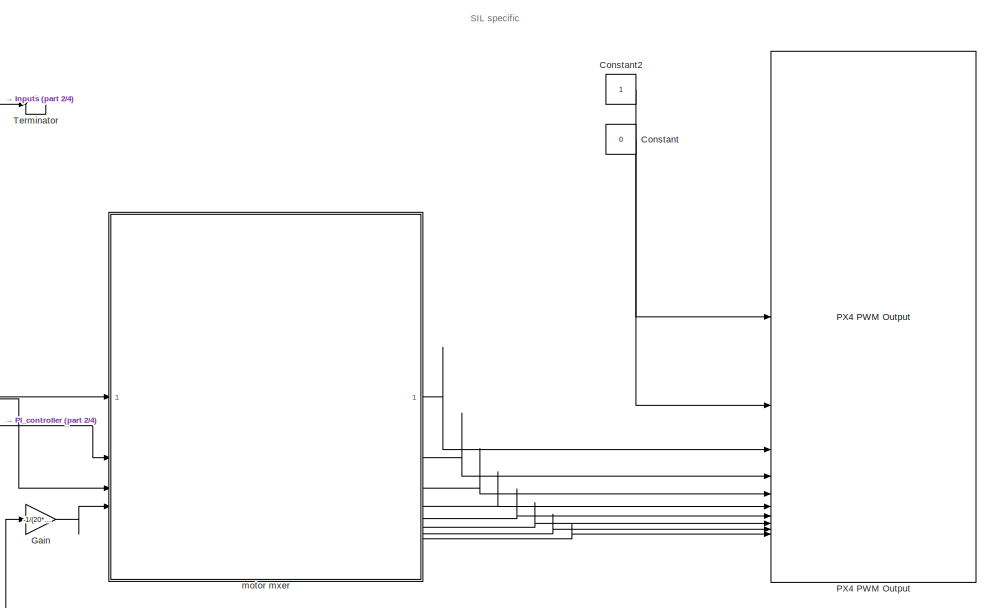
[diagram: root canvas - part 1/4, top right region]
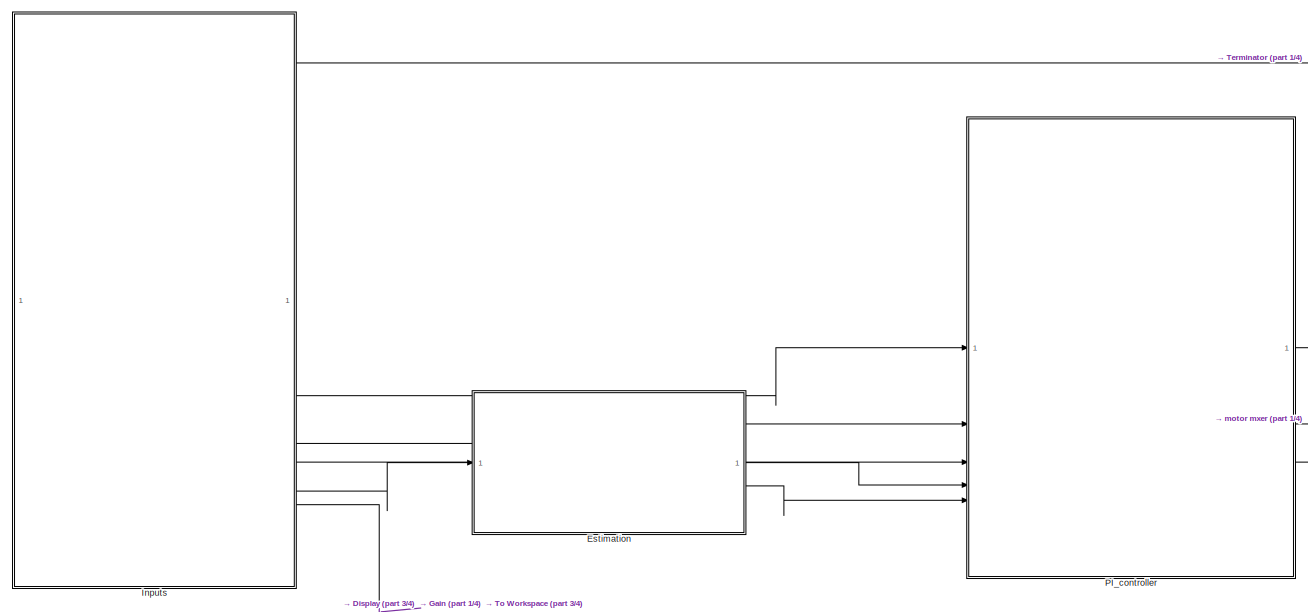
[diagram: root canvas - part 2/4, top left region]
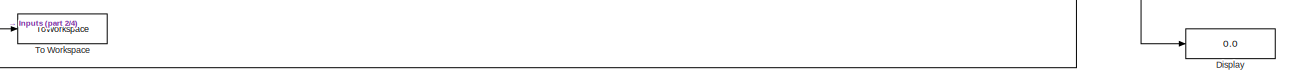
[diagram: root canvas - part 3/4, central region]
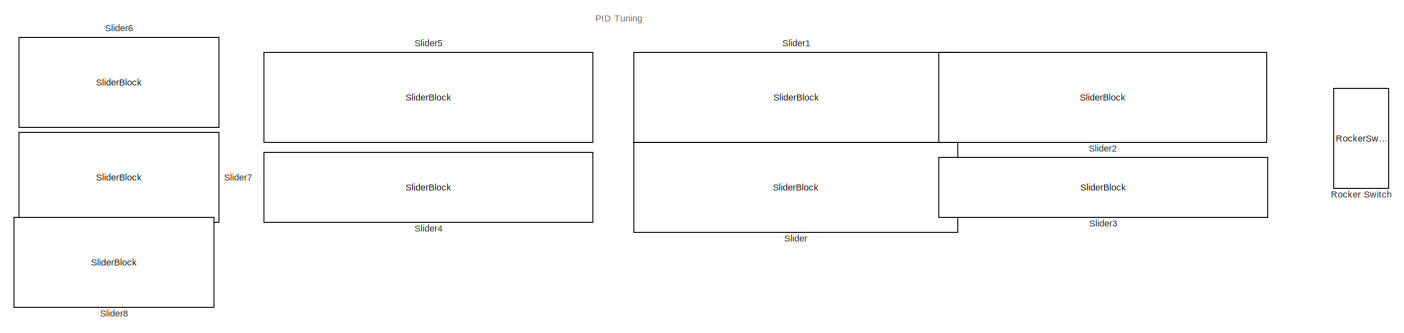
[diagram: root canvas - part 4/4, bottom left region]
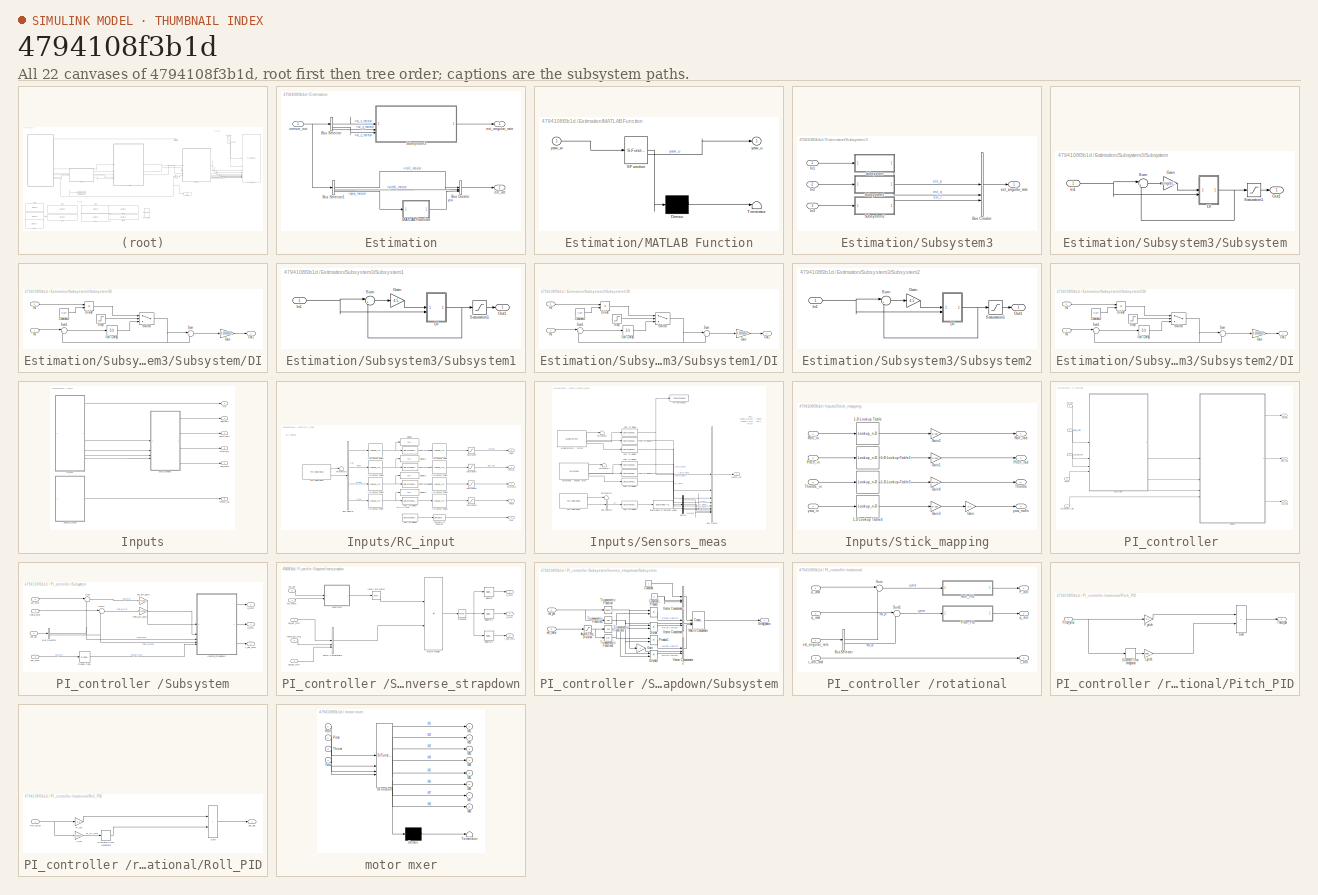
[diagram: thumbnail index - all 22 canvases of the model, root first then tree order]
MODEL slx_4794108f3b1d
KIND model
CONFIG AbsTol = auto
CONFIG EnableMultiTasking = on
CONFIG FixedStep = auto
CONFIG MaxStep = auto
CONFIG MinStep = auto
CONFIG RelTol = 1e-3
CONFIG SampleTimeConstraint = Unconstrained
CONFIG SolverName = FixedStepAuto
CONFIG StartTime = 0.0
CONFIG StopTime = inf
BLOCK [Constant] Constant
  OutDataTypeStr = boolean
  Value = 0
BLOCK [Constant] Constant2
  OutDataTypeStr = boolean
BLOCK [Display] Display
  Decimation = 1
BLOCK [SubSystem] Estimation
BLOCK [BusCreator] Estimation/Bus Creator
  DisplayOption = bar
  InheritFromInputs = on
  Inputs = 3
BLOCK [BusSelector] Estimation/Bus Selector
  OutputSignals = w_x_meas,w_y_meas,w_z_meas
BLOCK [BusSelector] Estimation/Bus Selector1
  OutputSignals = roll_meas,pitch_meas,yaw_meas
BLOCK [SubSystem] Estimation/MATLAB Function
  ErrorFcn = Stateflow.Translate.translate
  PermitHierarchicalResolution = ExplicitOnly
  SFBlockType = MATLAB Function
  TreatAsAtomicUnit = on
BLOCK [Demux] Estimation/MATLAB Function/ Demux 
  Outputs = 1
BLOCK [S-Function] Estimation/MATLAB Function/ SFunction 
  EnableBusSupport = off
  FunctionName = sf_sfun
  PortCounts = [1 2]
  SFcnIsStateOwnerBlock = off
  SFunctionDeploymentMode = off
  Tag = Stateflow S-Function 2
BLOCK [Terminator] Estimation/MATLAB Function/ Terminator 
BLOCK [Outport] Estimation/MATLAB Function/yaw_u
BLOCK [Inport] Estimation/MATLAB Function/yaw_w
BLOCK [SubSystem] Estimation/Subsystem3
BLOCK [BusCreator] Estimation/Subsystem3/Bus Creator
  DisplayOption = bar
  InheritFromInputs = on
  Inputs = 3
BLOCK [Inport] Estimation/Subsystem3/In1
BLOCK [Inport] Estimation/Subsystem3/In2
  Port = 2
BLOCK [Inport] Estimation/Subsystem3/In3
  Port = 3
BLOCK [SubSystem] Estimation/Subsystem3/Subsystem
BLOCK [SubSystem] Estimation/Subsystem3/Subsystem/DI
BLOCK [Constant] Estimation/Subsystem3/Subsystem/DI/Constant2
  Value = 0.004
BLOCK [Product] Estimation/Subsystem3/Subsystem/DI/Divide
  Inputs = */
BLOCK [Gain] Estimation/Subsystem3/Subsystem/DI/Gain
  Gain = 0.004/2
BLOCK [Inport] Estimation/Subsystem3/Subsystem/DI/In1
BLOCK [Inport] Estimation/Subsystem3/Subsystem/DI/In2
  Port = 2
BLOCK [Outport] Estimation/Subsystem3/Subsystem/DI/Out1
BLOCK [Step] Estimation/Subsystem3/Subsystem/DI/Step
  After = 0
  Before = 1
  SampleTime = 0.004
  Time = 0.02
BLOCK [Sum] Estimation/Subsystem3/Subsystem/DI/Sum
  Inputs = |++
  NameLocation = top
BLOCK [Sum] Estimation/Subsystem3/Subsystem/DI/Sum1
  Inputs = |++
BLOCK [Switch] Estimation/Subsystem3/Subsystem/DI/Switch
  Criteria = u2 > Threshold
  InputSameDT = off
  SaturateOnIntegerOverflow = off
BLOCK [UnitDelay] Estimation/Subsystem3/Subsystem/DI/Unit Delay
  HasFrameUpgradeWarning = on
  SampleTime = -1
BLOCK [Gain] Estimation/Subsystem3/Subsystem/Gain
  Gain = single(4.5)
BLOCK [Inport] Estimation/Subsystem3/Subsystem/In1
BLOCK [Outport] Estimation/Subsystem3/Subsystem/Out1
BLOCK [Saturate] Estimation/Subsystem3/Subsystem/Saturation1
  LowerLimit = -5.24
  UpperLimit = 5.24
BLOCK [Sum] Estimation/Subsystem3/Subsystem/Sum
  Inputs = |+-
BLOCK [SubSystem] Estimation/Subsystem3/Subsystem1
BLOCK [SubSystem] Estimation/Subsystem3/Subsystem1/DI
BLOCK [Constant] Estimation/Subsystem3/Subsystem1/DI/Constant2
  Value = 0.004
BLOCK [Product] Estimation/Subsystem3/Subsystem1/DI/Divide
  Inputs = */
BLOCK [Gain] Estimation/Subsystem3/Subsystem1/DI/Gain
  Gain = 0.004/2
BLOCK [Inport] Estimation/Subsystem3/Subsystem1/DI/In1
BLOCK [Inport] Estimation/Subsystem3/Subsystem1/DI/In2
  Port = 2
BLOCK [Outport] Estimation/Subsystem3/Subsystem1/DI/Out1
BLOCK [Step] Estimation/Subsystem3/Subsystem1/DI/Step
  After = 0
  Before = 1
  SampleTime = 0.004
  Time = 0.02
BLOCK [Sum] Estimation/Subsystem3/Subsystem1/DI/Sum
  Inputs = |++
  NameLocation = top
BLOCK [Sum] Estimation/Subsystem3/Subsystem1/DI/Sum1
  Inputs = |++
BLOCK [Switch] Estimation/Subsystem3/Subsystem1/DI/Switch
  Criteria = u2 > Threshold
  InputSameDT = off
  SaturateOnIntegerOverflow = off
BLOCK [UnitDelay] Estimation/Subsystem3/Subsystem1/DI/Unit Delay
  HasFrameUpgradeWarning = on
  SampleTime = -1
BLOCK [Gain] Estimation/Subsystem3/Subsystem1/Gain
  Gain = 4.5
BLOCK [Inport] Estimation/Subsystem3/Subsystem1/In1
BLOCK [Outport] Estimation/Subsystem3/Subsystem1/Out1
BLOCK [Saturate] Estimation/Subsystem3/Subsystem1/Saturation1
  LowerLimit = -5.24
  UpperLimit = 5.24
BLOCK [Sum] Estimation/Subsystem3/Subsystem1/Sum
  Inputs = |+-
BLOCK [SubSystem] Estimation/Subsystem3/Subsystem2
BLOCK [SubSystem] Estimation/Subsystem3/Subsystem2/DI
BLOCK [Constant] Estimation/Subsystem3/Subsystem2/DI/Constant2
  Value = 0.004
BLOCK [Product] Estimation/Subsystem3/Subsystem2/DI/Divide
  Inputs = */
BLOCK [Gain] Estimation/Subsystem3/Subsystem2/DI/Gain
  Gain = 0.004/2
BLOCK [Inport] Estimation/Subsystem3/Subsystem2/DI/In1
BLOCK [Inport] Estimation/Subsystem3/Subsystem2/DI/In2
  Port = 2
BLOCK [Outport] Estimation/Subsystem3/Subsystem2/DI/Out1
BLOCK [Step] Estimation/Subsystem3/Subsystem2/DI/Step
  After = 0
  Before = 1
  SampleTime = 0.004
  Time = 0.02
BLOCK [Sum] Estimation/Subsystem3/Subsystem2/DI/Sum
  Inputs = |++
  NameLocation = top
BLOCK [Sum] Estimation/Subsystem3/Subsystem2/DI/Sum1
  Inputs = |++
BLOCK [Switch] Estimation/Subsystem3/Subsystem2/DI/Switch
  Criteria = u2 > Threshold
  InputSameDT = off
  SaturateOnIntegerOverflow = off
BLOCK [UnitDelay] Estimation/Subsystem3/Subsystem2/DI/Unit Delay
  HasFrameUpgradeWarning = on
  SampleTime = -1
BLOCK [Gain] Estimation/Subsystem3/Subsystem2/Gain
  Gain = 4.5
BLOCK [Inport] Estimation/Subsystem3/Subsystem2/In1
BLOCK [Outport] Estimation/Subsystem3/Subsystem2/Out1
  NameLocation = right
BLOCK [Saturate] Estimation/Subsystem3/Subsystem2/Saturation1
  LowerLimit = -5.24
  UpperLimit = 5.24
BLOCK [Sum] Estimation/Subsystem3/Subsystem2/Sum
  Inputs = |+-
BLOCK [Outport] Estimation/Subsystem3/est_angular_rate
BLOCK [Outport] Estimation/est_angular_rate
BLOCK [Outport] Estimation/est_att
  Port = 2
BLOCK [Inport] Estimation/sensor_out
BLOCK [Gain] Gain
  Gain = -1/(20*9.81*2)
BLOCK [SubSystem] Inputs
BLOCK [Outport] Inputs/Arm
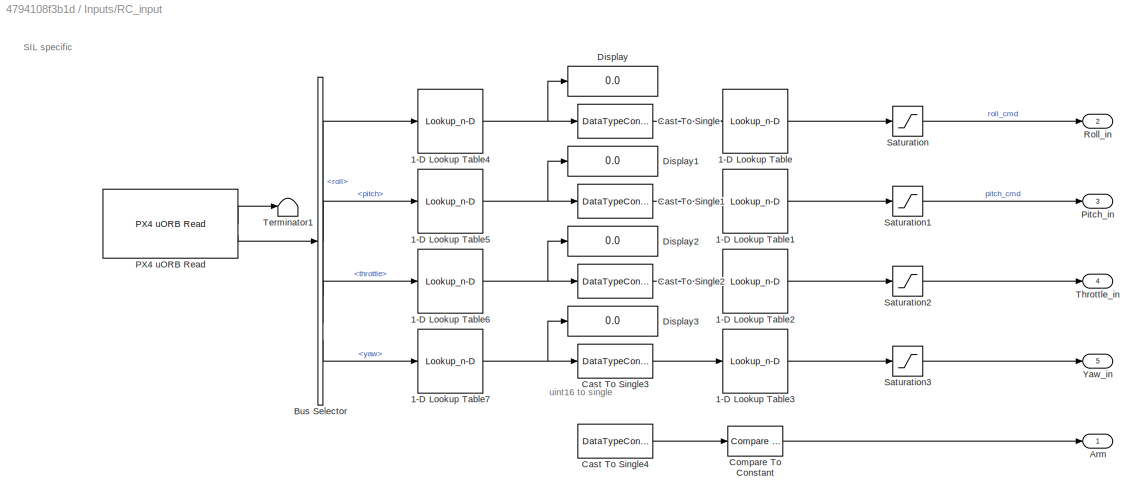
BLOCK [SubSystem] Inputs/RC_input
BLOCK [Lookup_n-D] Inputs/RC_input/1-D Lookup Table
  BreakpointsForDimension1 = ([1000 1500 2000])
  InputPortMap = u0
  InternalRulePriority = Speed
  NumberOfTableDimensions = 1
  RndMeth = Simplest
  Table = single([-1 0 1])
BLOCK [Lookup_n-D] Inputs/RC_input/1-D Lookup Table1
  BreakpointsForDimension1 = ([1000 1500 2000])
  InputPortMap = u0
  InternalRulePriority = Speed
  NumberOfTableDimensions = 1
  RndMeth = Simplest
  Table = single([-1 0 1])
BLOCK [Lookup_n-D] Inputs/RC_input/1-D Lookup Table2
  BreakpointsForDimension1 = ([1000 1500 2000])
  InputPortMap = u0
  InternalRulePriority = Speed
  NumberOfTableDimensions = 1
  RndMeth = Simplest
  Table = single([0 0.5 1])
BLOCK [Lookup_n-D] Inputs/RC_input/1-D Lookup Table3
  BreakpointsForDimension1 = ([1000 1500 2000])
  InputPortMap = u0
  InternalRulePriority = Speed
  NumberOfTableDimensions = 1
  RndMeth = Simplest
  Table = single([-1 0 1])
BLOCK [Lookup_n-D] Inputs/RC_input/1-D Lookup Table4
  BreakpointsForDimension1 = [-1, 0,1]
  InputPortMap = u0
  InternalRulePriority = Speed
  NumberOfTableDimensions = 1
  RndMeth = Simplest
  Table = single([1000, 1500, 2000])
BLOCK [Lookup_n-D] Inputs/RC_input/1-D Lookup Table5
  BreakpointsForDimension1 = [-1, 0,1]
  InputPortMap = u0
  InternalRulePriority = Speed
  NumberOfTableDimensions = 1
  RndMeth = Simplest
  Table = single([1000, 1500, 2000])
BLOCK [Lookup_n-D] Inputs/RC_input/1-D Lookup Table6
  BreakpointsForDimension1 = [0,1]
  InputPortMap = u0
  InternalRulePriority = Speed
  NumberOfTableDimensions = 1
  RndMeth = Simplest
  Table = single([1000,  2000])
BLOCK [Lookup_n-D] Inputs/RC_input/1-D Lookup Table7
  BreakpointsForDimension1 = [-1, 0,1]
  InputPortMap = u0
  InternalRulePriority = Speed
  NumberOfTableDimensions = 1
  RndMeth = Simplest
  Table = single([1000, 1500, 2000])
BLOCK [Outport] Inputs/RC_input/Arm
BLOCK [BusSelector] Inputs/RC_input/Bus Selector
  OutputSignals = roll,pitch,throttle,yaw
BLOCK [DataTypeConversion] Inputs/RC_input/Cast To Single
  OutDataTypeStr = single
  RndMeth = Floor
  SaturateOnIntegerOverflow = off
BLOCK [DataTypeConversion] Inputs/RC_input/Cast To Single1
  OutDataTypeStr = single
  RndMeth = Floor
  SaturateOnIntegerOverflow = off
BLOCK [DataTypeConversion] Inputs/RC_input/Cast To Single2
  OutDataTypeStr = single
  RndMeth = Floor
  SaturateOnIntegerOverflow = off
BLOCK [DataTypeConversion] Inputs/RC_input/Cast To Single3
  OutDataTypeStr = single
  RndMeth = Floor
  SaturateOnIntegerOverflow = off
BLOCK [DataTypeConversion] Inputs/RC_input/Cast To Single4
  Commented = on
  OutDataTypeStr = single
  RndMeth = Floor
  SaturateOnIntegerOverflow = off
BLOCK [Reference] Inputs/RC_input/Compare To Constant  REF=simulink/Logic and Bit
Operations/Compare
To Constant
  Commented = on
  SourceBlock = simulink/Logic and Bit\nOperations/Compare\nTo Constant
  SourceType = Compare To Constant
BLOCK [Display] Inputs/RC_input/Display
  Decimation = 1
BLOCK [Display] Inputs/RC_input/Display1
  Decimation = 1
BLOCK [Display] Inputs/RC_input/Display2
  Decimation = 1
BLOCK [Display] Inputs/RC_input/Display3
  Decimation = 1
BLOCK [Reference] Inputs/RC_input/PX4 uORB Read  REF=px4uORBlib/PX4 uORB Read
  SourceBlock = px4uORBlib/PX4 uORB Read
  SourceType = PX4 uORB Read
BLOCK [Outport] Inputs/RC_input/Pitch_in
  Port = 3
BLOCK [Outport] Inputs/RC_input/Roll_in
  Port = 2
BLOCK [Saturate] Inputs/RC_input/Saturation
  LowerLimit = -1
  UpperLimit = 1
BLOCK [Saturate] Inputs/RC_input/Saturation1
  LowerLimit = -1
  UpperLimit = 1
BLOCK [Saturate] Inputs/RC_input/Saturation2
  LowerLimit = 0
  UpperLimit = 1
BLOCK [Saturate] Inputs/RC_input/Saturation3
  LowerLimit = -1
  UpperLimit = 1
BLOCK [Terminator] Inputs/RC_input/Terminator1
BLOCK [Outport] Inputs/RC_input/Throttle_in
  Port = 4
BLOCK [Outport] Inputs/RC_input/Yaw_in
  Port = 5
BLOCK [Outport] Inputs/Roll_rad//s
  Port = 2
BLOCK [SubSystem] Inputs/Sensors_meas
BLOCK [Reference] Inputs/Sensors_meas/Accelerometer - forces   REF=px4Sensorslib/Accelerometer
  SourceBlock = px4Sensorslib/Accelerometer
  SourceType = PX4 Accelerometer
BLOCK [BusCreator] Inputs/Sensors_meas/Bus Creator
  DisplayOption = bar
  InheritFromInputs = on
  Inputs = 9
BLOCK [BusSelector] Inputs/Sensors_meas/Bus Selector
  OutputSignals = q
BLOCK [DataTypeConversion] Inputs/Sensors_meas/Cast To Single
  OutDataTypeStr = single
  RndMeth = Floor
  SaturateOnIntegerOverflow = off
BLOCK [DataTypeConversion] Inputs/Sensors_meas/Cast To Single1
  OutDataTypeStr = single
  RndMeth = Floor
  SaturateOnIntegerOverflow = off
BLOCK [DataTypeConversion] Inputs/Sensors_meas/Cast To Single2
  OutDataTypeStr = single
  RndMeth = Floor
  SaturateOnIntegerOverflow = off
BLOCK [DataTypeConversion] Inputs/Sensors_meas/Cast To Single3
  OutDataTypeStr = single
  RndMeth = Floor
  SaturateOnIntegerOverflow = off
BLOCK [DataTypeConversion] Inputs/Sensors_meas/Cast To Single4
  OutDataTypeStr = single
  RndMeth = Floor
  SaturateOnIntegerOverflow = off
BLOCK [DataTypeConversion] Inputs/Sensors_meas/Cast To Single5
  OutDataTypeStr = single
  RndMeth = Floor
  SaturateOnIntegerOverflow = off
BLOCK [DataTypeConversion] Inputs/Sensors_meas/Cast To Single6
  OutDataTypeStr = single
  RndMeth = Floor
  SaturateOnIntegerOverflow = off
BLOCK [Demux] Inputs/Sensors_meas/Demux
  Outputs = 3
BLOCK [Reference] Inputs/Sensors_meas/Gyroscope - angular rates  REF=px4Sensorslib/Gyroscope
  SourceBlock = px4Sensorslib/Gyroscope
  SourceType = PX4 Gyroscope
BLOCK [Reference] Inputs/Sensors_meas/PX4 uORB Read  REF=px4uORBlib/PX4 uORB Read
  SourceBlock = px4uORBlib/PX4 uORB Read
  SourceType = PX4 uORB Read
BLOCK [Reference] Inputs/Sensors_meas/Quaternions to Rotation Angles  REF=sharedtransform/Quaternions to Rotation Angles
  AttributesFormatString = Rotation Order: %<rotationOrder>
  LibrarySourceBlock = aerolibtransform2/Quaternions to Rotation Angles
  SourceBlock = sharedtransform/Quaternions to Rotation Angles
  SourceType = Quat2Ang
BLOCK [Terminator] Inputs/Sensors_meas/Terminator
BLOCK [Terminator] Inputs/Sensors_meas/Terminator1
BLOCK [Terminator] Inputs/Sensors_meas/Terminator2
BLOCK [ToWorkspace] Inputs/Sensors_meas/To Workspace
  FixptAsFi = on
  MaxDataPoints = inf
  SampleTime = -1
  SaveFormat = Structure With Time
  VariableName = ax
BLOCK [Outport] Inputs/Sensors_meas/sensor_out
BLOCK [SubSystem] Inputs/Stick_mapping
BLOCK [Lookup_n-D] Inputs/Stick_mapping/1-D Lookup Table
  BreakpointsForDimension1 = single([-1,1])
  InputPortMap = u0
  InternalRulePriority = Speed
  NumberOfTableDimensions = 1
  RndMeth = Simplest
  Table = single([-30,30])
BLOCK [Lookup_n-D] Inputs/Stick_mapping/1-D Lookup Table1
  BreakpointsForDimension1 = single([-1,1])
  InputPortMap = u0
  InternalRulePriority = Speed
  NumberOfTableDimensions = 1
  RndMeth = Simplest
  Table = single([30,-30])
BLOCK [Lookup_n-D] Inputs/Stick_mapping/1-D Lookup Table3
  BreakpointsForDimension1 = single([0 0.100000001 0.25 0.5 0.75 1])
  InputPortMap = u0
  InternalRulePriority = Speed
  NumberOfTableDimensions = 1
  RndMeth = Simplest
  Table = single([0 -0.200000003 -0.5 -1 -1.5 -2])
BLOCK [Lookup_n-D] Inputs/Stick_mapping/1-D Lookup Table4
  BreakpointsForDimension1 = single([-1,1])
  InputPortMap = u0
  InternalRulePriority = Speed
  NumberOfTableDimensions = 1
  RndMeth = Simplest
  Table = single([-90,90])
BLOCK [Gain] Inputs/Stick_mapping/Gain
  Gain = 0.2
BLOCK [Gain] Inputs/Stick_mapping/Gain1
  Gain = pi/180
BLOCK [Gain] Inputs/Stick_mapping/Gain2
  Gain = pi/180
BLOCK [Gain] Inputs/Stick_mapping/Gain3
  Gain = pi/180
BLOCK [Gain] Inputs/Stick_mapping/Gain4
  Gain = 20*9.81
BLOCK [Inport] Inputs/Stick_mapping/Pitch_in
  Port = 2
BLOCK [Outport] Inputs/Stick_mapping/Pitch_rad
  Port = 2
BLOCK [Inport] Inputs/Stick_mapping/Roll_in
BLOCK [Outport] Inputs/Stick_mapping/Roll_rad
BLOCK [Outport] Inputs/Stick_mapping/Throttle
  Port = 3
BLOCK [Inport] Inputs/Stick_mapping/Throttle_in
  Port = 3
BLOCK [Inport] Inputs/Stick_mapping/yaw_in
  Port = 4
BLOCK [Outport] Inputs/Stick_mapping/yaw_rad//s
  Port = 4
BLOCK [Outport] Inputs/Throttle_in
  Port = 6
BLOCK [Outport] Inputs/Yaw_rad//s
  Port = 4
BLOCK [Outport] Inputs/pitch_rad//s
  Port = 3
BLOCK [Outport] Inputs/sensor_out
  Port = 5
BLOCK [SubSystem] PI_controller 
BLOCK [SubSystem] PI_controller /Subsystem
BLOCK [BusSelector] PI_controller /Subsystem/Bus Selector
  OutputSignals = roll_meas,pitch_meas
BLOCK [SubSystem] PI_controller /Subsystem/Inverse_strapdown
BLOCK [Reference] PI_controller /Subsystem/Inverse_strapdown/Invert 3x3 Matrix  REF=aerolibutil/Invert 
3x3 Matrix
  SourceBlock = aerolibutil/Invert \n3x3 Matrix
  SourceType = Invert 3x3 Matrix
BLOCK [Product] PI_controller /Subsystem/Inverse_strapdown/Matrix Multiply
  Multiplication = Matrix(*)
BLOCK [Selector] PI_controller /Subsystem/Inverse_strapdown/Selector
  IndexOptions = Index vector (dialog)
  Indices = 1
  InputPortWidth = 3
  OutputSizes = 1
BLOCK [Selector] PI_controller /Subsystem/Inverse_strapdown/Selector1
  IndexOptions = Index vector (dialog)
  Indices = 2
  InputPortWidth = 3
  OutputSizes = 1
BLOCK [Selector] PI_controller /Subsystem/Inverse_strapdown/Selector2
  IndexOptions = Index vector (dialog)
  Indices = 3
  InputPortWidth = 3
  OutputSizes = 1
BLOCK [SubSystem] PI_controller /Subsystem/Inverse_strapdown/Subsystem
BLOCK [Saturate] PI_controller /Subsystem/Inverse_strapdown/Subsystem/Avoid_Zero_Division
  LowerLimit = -pi/2*0.9
  UpperLimit = pi/2*0.9
BLOCK [Constant] PI_controller /Subsystem/Inverse_strapdown/Subsystem/Constant
  OutDataTypeStr = single
BLOCK [Constant] PI_controller /Subsystem/Inverse_strapdown/Subsystem/Constant1
  OutDataTypeStr = single
  Value = 0
BLOCK [Product] PI_controller /Subsystem/Inverse_strapdown/Subsystem/Divide
  Inputs = */
BLOCK [Product] PI_controller /Subsystem/Inverse_strapdown/Subsystem/Divide1
  Inputs = */
BLOCK [Gain] PI_controller /Subsystem/Inverse_strapdown/Subsystem/Gain
  Gain = -1
BLOCK [Concatenate] PI_controller /Subsystem/Inverse_strapdown/Subsystem/Matrix Concaenate
  ConcatenateDimension = 2
  Mode = Multidimensional array
  NumInputs = 3
BLOCK [Product] PI_controller /Subsystem/Inverse_strapdown/Subsystem/Product
  RndMeth = Zero
BLOCK [Product] PI_controller /Subsystem/Inverse_strapdown/Subsystem/Product1
  RndMeth = Zero
BLOCK [Outport] PI_controller /Subsystem/Inverse_strapdown/Subsystem/Strap_down
BLOCK [Trigonometry] PI_controller /Subsystem/Inverse_strapdown/Subsystem/Trigonometric Function
BLOCK [Trigonometry] PI_controller /Subsystem/Inverse_strapdown/Subsystem/Trigonometric Function1
  Operator = cos
BLOCK [Trigonometry] PI_controller /Subsystem/Inverse_strapdown/Subsystem/Trigonometric Function2
  Operator = tan
BLOCK [Trigonometry] PI_controller /Subsystem/Inverse_strapdown/Subsystem/Trigonometric Function3
  Operator = cos
BLOCK [Concatenate] PI_controller /Subsystem/Inverse_strapdown/Subsystem/Vector Concatenate
  Mode = Multidimensional array
  NumInputs = 3
BLOCK [Concatenate] PI_controller /Subsystem/Inverse_strapdown/Subsystem/Vector Concatenate1
  Mode = Multidimensional array
  NumInputs = 3
BLOCK [Concatenate] PI_controller /Subsystem/Inverse_strapdown/Subsystem/Vector Concatenate2
  Mode = Multidimensional array
  NumInputs = 3
BLOCK [Inport] PI_controller /Subsystem/Inverse_strapdown/Subsystem/est_phi
BLOCK [Inport] PI_controller /Subsystem/Inverse_strapdown/Subsystem/est_theta
  Port = 2
BLOCK [Math] PI_controller /Subsystem/Inverse_strapdown/Transpose
  Operator = transpose
BLOCK [Concatenate] PI_controller /Subsystem/Inverse_strapdown/Vector Concatenate
  Mode = Multidimensional array
  NumInputs = 3
BLOCK [Inport] PI_controller /Subsystem/Inverse_strapdown/est_phi
  Port = 3
BLOCK [Inport] PI_controller /Subsystem/Inverse_strapdown/est_theta
  Port = 4
BLOCK [Outport] PI_controller /Subsystem/Inverse_strapdown/p_cmd
BLOCK [Inport] PI_controller /Subsystem/Inverse_strapdown/phi_dot_cmd
BLOCK [Inport] PI_controller /Subsystem/Inverse_strapdown/psi_dot_cmd
  Port = 5
BLOCK [Outport] PI_controller /Subsystem/Inverse_strapdown/q_cmd
  Port = 2
BLOCK [Outport] PI_controller /Subsystem/Inverse_strapdown/r_dot_cmd
  Port = 3
BLOCK [Inport] PI_controller /Subsystem/Inverse_strapdown/theta_dot_cmd
  Port = 2
BLOCK [SignalConversion] PI_controller /Subsystem/Signal Copy
  OverrideOpt = off
BLOCK [Sum] PI_controller /Subsystem/Sum
  Inputs = |+-
BLOCK [Sum] PI_controller /Subsystem/Sum1
  Inputs = |+-
BLOCK [Inport] PI_controller /Subsystem/est_att
  Port = 4
BLOCK [Outport] PI_controller /Subsystem/p_cmd
BLOCK [Inport] PI_controller /Subsystem/phi_cmd
BLOCK [Gain] PI_controller /Subsystem/phi_err_gain
  Gain = 0.7133389565007833
BLOCK [Inport] PI_controller /Subsystem/psi_cmd
  Port = 3
BLOCK [Outport] PI_controller /Subsystem/q_cmd
  Port = 2
BLOCK [Outport] PI_controller /Subsystem/r_dot_cmd
  Port = 3
BLOCK [Inport] PI_controller /Subsystem/theta_cmd
  Port = 2
BLOCK [Gain] PI_controller /Subsystem/theta_err_gain
  Gain = 0.7075551271237498
BLOCK [Inport] PI_controller /est_angular_rate
  Port = 4
BLOCK [Inport] PI_controller /est_att
  Port = 5
BLOCK [Inport] PI_controller /phi_cmd
BLOCK [Outport] PI_controller /pitch_cmd
  Port = 2
BLOCK [Inport] PI_controller /psi_dot_cmd
  Port = 3
BLOCK [Outport] PI_controller /roll_cmd
BLOCK [SubSystem] PI_controller /rotational
BLOCK [BusSelector] PI_controller /rotational/Bus Selector
  OutputSignals = est_p,est_q
BLOCK [Outport] PI_controller /rotational/P_dot
BLOCK [SubSystem] PI_controller /rotational/Pitch_PID
BLOCK [DiscreteIntegrator] PI_controller /rotational/Pitch_PID/Discrete-Time Integrator
  ICPrevOutput = DiscIntNeverNeededParam
  ICPrevScaledInput = DiscIntNeverNeededParam
  InitialConditionSetting = Auto
  SampleTime = -1
BLOCK [Gain] PI_controller /rotational/Pitch_PID/I_pitch
  Gain = single(0.02936526)
BLOCK [Gain] PI_controller /rotational/Pitch_PID/P_pitch
  Gain = 0.2
BLOCK [Inport] PI_controller /rotational/Pitch_PID/Pitch_error
BLOCK [Sum] PI_controller /rotational/Pitch_PID/Sum
  IconShape = rectangular
  Inputs = |++
BLOCK [Outport] PI_controller /rotational/Pitch_PID/Theta_dot
BLOCK [SubSystem] PI_controller /rotational/Roll_PID
BLOCK [DiscreteIntegrator] PI_controller /rotational/Roll_PID/Discrete-Time Integrator
  ICPrevOutput = DiscIntNeverNeededParam
  ICPrevScaledInput = DiscIntNeverNeededParam
  InitialConditionSetting = Auto
  SampleTime = -1
  gainval = 1
BLOCK [Gain] PI_controller /rotational/Roll_PID/I_roll
  Gain = 0.03033785294146734
BLOCK [Gain] PI_controller /rotational/Roll_PID/P_roll
  Gain = 0.2
BLOCK [Inport] PI_controller /rotational/Roll_PID/Roll_error
BLOCK [Sum] PI_controller /rotational/Roll_PID/Sum
  IconShape = rectangular
  Inputs = |++
BLOCK [Outport] PI_controller /rotational/Roll_PID/phi_dot
BLOCK [Sum] PI_controller /rotational/Sum
  Inputs = |+-
BLOCK [Sum] PI_controller /rotational/Sum1
  Inputs = |+-
BLOCK [Inport] PI_controller /rotational/est_angular_rate
  Port = 4
BLOCK [Inport] PI_controller /rotational/p_cmd
BLOCK [Inport] PI_controller /rotational/q_cmd
  Port = 2
BLOCK [Outport] PI_controller /rotational/q_dot
  Port = 2
BLOCK [Outport] PI_controller /rotational/r_dot
  Port = 3
BLOCK [Inport] PI_controller /rotational/r_dot_cmd
  Port = 3
BLOCK [Inport] PI_controller /theta_cmd
  Port = 2
BLOCK [Outport] PI_controller /yaw_cmd
  Port = 3
BLOCK [Reference] PX4 PWM Output  REF=px4Peripheralslib/PX4 PWM Output
  SourceBlock = px4Peripheralslib/PX4 PWM Output
  SourceType = PX4 PWM Output
BLOCK [RockerSwitchBlock] Rocker Switch
BLOCK [SliderBlock] Slider
  ScaleMax = 0.1
BLOCK [SliderBlock] Slider1
  ScaleMax = 0.5
BLOCK [SliderBlock] Slider2
  ScaleMax = 0.5
BLOCK [SliderBlock] Slider3
  ScaleMax = 0.1
BLOCK [SliderBlock] Slider4
  ScaleMax = 1
BLOCK [SliderBlock] Slider5
  ScaleMax = 1
BLOCK [SliderBlock] Slider6
  ScaleMax = 4.5
BLOCK [SliderBlock] Slider7
  ScaleMax = 4.5
BLOCK [SliderBlock] Slider8
  ScaleMax = 4.5
BLOCK [Terminator] Terminator
BLOCK [ToWorkspace] To Workspace
  FixptAsFi = on
  MaxDataPoints = inf
  SampleTime = -1
  SaveFormat = Structure With Time
  VariableName = throttle
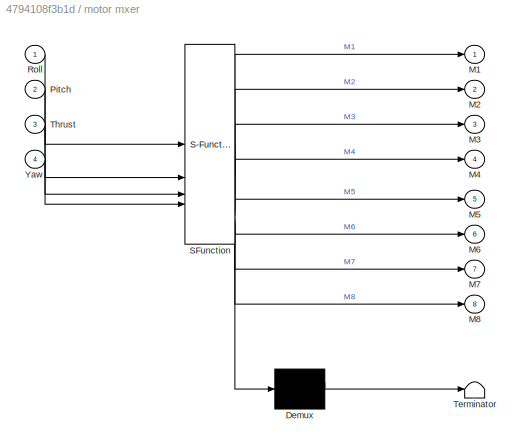
BLOCK [SubSystem] motor mxer
  ErrorFcn = Stateflow.Translate.translate
  PermitHierarchicalResolution = ExplicitOnly
  SFBlockType = MATLAB Function
  TreatAsAtomicUnit = on
BLOCK [Demux] motor mxer/ Demux 
  Outputs = 1
BLOCK [S-Function] motor mxer/ SFunction 
  EnableBusSupport = off
  FunctionName = sf_sfun
  PortCounts = [4 9]
  SFcnIsStateOwnerBlock = off
  SFunctionDeploymentMode = off
  Tag = Stateflow S-Function 1
BLOCK [Terminator] motor mxer/ Terminator 
BLOCK [Outport] motor mxer/M1
BLOCK [Outport] motor mxer/M2
  Port = 2
BLOCK [Outport] motor mxer/M3
  Port = 3
BLOCK [Outport] motor mxer/M4
  Port = 4
BLOCK [Outport] motor mxer/M5
  Port = 5
BLOCK [Outport] motor mxer/M6
  Port = 6
BLOCK [Outport] motor mxer/M7
  Port = 7
BLOCK [Outport] motor mxer/M8
  Port = 8
BLOCK [Inport] motor mxer/Pitch
  Port = 2
BLOCK [Inport] motor mxer/Roll
BLOCK [Inport] motor mxer/Thrust
  Port = 3
BLOCK [Inport] motor mxer/Yaw
  Port = 4
ANNOTATION (root): PID Tuning
ANNOTATION (root): SIL specific
ANNOTATION Inputs/RC_input: SIL specific
ANNOTATION Inputs/RC_input: uint16 to single
ANNOTATION Inputs/Sensors_meas: Units: vehicle attitude - radians Angular rates - rad/s forces -
LINE Constant2:1 -> PX4 PWM Output:1
LINE Constant:1 -> PX4 PWM Output:2
LINE Estimation/Bus Creator:1 -> Estimation/est_att:1
LINE Estimation/Bus Selector1:1 -> Estimation/Bus Creator:1
LINE Estimation/Bus Selector1:2 -> Estimation/Bus Creator:2
LINE Estimation/Bus Selector1:3 -> Estimation/MATLAB Function:1
LINE Estimation/Bus Selector:1 -> Estimation/Subsystem3:1
LINE Estimation/Bus Selector:2 -> Estimation/Subsystem3:2
LINE Estimation/Bus Selector:3 -> Estimation/Subsystem3:3
LINE Estimation/MATLAB Function:1 -> Estimation/Bus Creator:3
LINE Estimation/Subsystem3/Bus Creator:1 -> Estimation/Subsystem3/est_angular_rate:1
LINE Estimation/Subsystem3/In1:1 -> Estimation/Subsystem3/Subsystem:1
LINE Estimation/Subsystem3/In2:1 -> Estimation/Subsystem3/Subsystem1:1
LINE Estimation/Subsystem3/In3:1 -> Estimation/Subsystem3/Subsystem2:1
LINE Estimation/Subsystem3/Subsystem/DI/Constant2:1 -> Estimation/Subsystem3/Subsystem/DI/Divide:2
LINE Estimation/Subsystem3/Subsystem/DI/Divide:1 -> Estimation/Subsystem3/Subsystem/DI/Switch:1
LINE Estimation/Subsystem3/Subsystem/DI/Gain:1 -> Estimation/Subsystem3/Subsystem/DI/Out1:1
LINE Estimation/Subsystem3/Subsystem/DI/In1:1 -> Estimation/Subsystem3/Subsystem/DI/Sum1:1
LINE Estimation/Subsystem3/Subsystem/DI/In2:1 -> Estimation/Subsystem3/Subsystem/DI/Divide:1
LINE Estimation/Subsystem3/Subsystem/DI/Step:1 -> Estimation/Subsystem3/Subsystem/DI/Switch:2
LINE Estimation/Subsystem3/Subsystem/DI/Sum1:1 -> Estimation/Subsystem3/Subsystem/DI/Unit Delay:1
LINE Estimation/Subsystem3/Subsystem/DI/Sum:1 -> Estimation/Subsystem3/Subsystem/DI/Gain:1
NET Estimation/Subsystem3/Subsystem/DI/Switch:1 -> Estimation/Subsystem3/Subsystem/DI/Sum1:2, Estimation/Subsystem3/Subsystem/DI/Sum:1, Estimation/Subsystem3/Subsystem/DI/Sum:2
LINE Estimation/Subsystem3/Subsystem/DI/Unit Delay:1 -> Estimation/Subsystem3/Subsystem/DI/Switch:3
NET Estimation/Subsystem3/Subsystem/DI:1 -> Estimation/Subsystem3/Subsystem/Saturation1:1, Estimation/Subsystem3/Subsystem/Sum:2
LINE Estimation/Subsystem3/Subsystem/Gain:1 -> Estimation/Subsystem3/Subsystem/DI:1
NET Estimation/Subsystem3/Subsystem/In1:1 -> Estimation/Subsystem3/Subsystem/DI:2, Estimation/Subsystem3/Subsystem/Sum:1
LINE Estimation/Subsystem3/Subsystem/Saturation1:1 -> Estimation/Subsystem3/Subsystem/Out1:1
LINE Estimation/Subsystem3/Subsystem/Sum:1 -> Estimation/Subsystem3/Subsystem/Gain:1
LINE Estimation/Subsystem3/Subsystem1/DI/Constant2:1 -> Estimation/Subsystem3/Subsystem1/DI/Divide:2
LINE Estimation/Subsystem3/Subsystem1/DI/Divide:1 -> Estimation/Subsystem3/Subsystem1/DI/Switch:1
LINE Estimation/Subsystem3/Subsystem1/DI/Gain:1 -> Estimation/Subsystem3/Subsystem1/DI/Out1:1
LINE Estimation/Subsystem3/Subsystem1/DI/In1:1 -> Estimation/Subsystem3/Subsystem1/DI/Sum1:1
LINE Estimation/Subsystem3/Subsystem1/DI/In2:1 -> Estimation/Subsystem3/Subsystem1/DI/Divide:1
LINE Estimation/Subsystem3/Subsystem1/DI/Step:1 -> Estimation/Subsystem3/Subsystem1/DI/Switch:2
LINE Estimation/Subsystem3/Subsystem1/DI/Sum1:1 -> Estimation/Subsystem3/Subsystem1/DI/Unit Delay:1
LINE Estimation/Subsystem3/Subsystem1/DI/Sum:1 -> Estimation/Subsystem3/Subsystem1/DI/Gain:1
NET Estimation/Subsystem3/Subsystem1/DI/Switch:1 -> Estimation/Subsystem3/Subsystem1/DI/Sum1:2, Estimation/Subsystem3/Subsystem1/DI/Sum:1, Estimation/Subsystem3/Subsystem1/DI/Sum:2
LINE Estimation/Subsystem3/Subsystem1/DI/Unit Delay:1 -> Estimation/Subsystem3/Subsystem1/DI/Switch:3
NET Estimation/Subsystem3/Subsystem1/DI:1 -> Estimation/Subsystem3/Subsystem1/Saturation1:1, Estimation/Subsystem3/Subsystem1/Sum:2
LINE Estimation/Subsystem3/Subsystem1/Gain:1 -> Estimation/Subsystem3/Subsystem1/DI:1
NET Estimation/Subsystem3/Subsystem1/In1:1 -> Estimation/Subsystem3/Subsystem1/DI:2, Estimation/Subsystem3/Subsystem1/Sum:1
LINE Estimation/Subsystem3/Subsystem1/Saturation1:1 -> Estimation/Subsystem3/Subsystem1/Out1:1
LINE Estimation/Subsystem3/Subsystem1/Sum:1 -> Estimation/Subsystem3/Subsystem1/Gain:1
LINE Estimation/Subsystem3/Subsystem1:1 -> Estimation/Subsystem3/Bus Creator:2
LINE Estimation/Subsystem3/Subsystem2/DI/Constant2:1 -> Estimation/Subsystem3/Subsystem2/DI/Divide:2
LINE Estimation/Subsystem3/Subsystem2/DI/Divide:1 -> Estimation/Subsystem3/Subsystem2/DI/Switch:1
LINE Estimation/Subsystem3/Subsystem2/DI/Gain:1 -> Estimation/Subsystem3/Subsystem2/DI/Out1:1
LINE Estimation/Subsystem3/Subsystem2/DI/In1:1 -> Estimation/Subsystem3/Subsystem2/DI/Sum1:1
LINE Estimation/Subsystem3/Subsystem2/DI/In2:1 -> Estimation/Subsystem3/Subsystem2/DI/Divide:1
LINE Estimation/Subsystem3/Subsystem2/DI/Step:1 -> Estimation/Subsystem3/Subsystem2/DI/Switch:2
LINE Estimation/Subsystem3/Subsystem2/DI/Sum1:1 -> Estimation/Subsystem3/Subsystem2/DI/Unit Delay:1
LINE Estimation/Subsystem3/Subsystem2/DI/Sum:1 -> Estimation/Subsystem3/Subsystem2/DI/Gain:1
NET Estimation/Subsystem3/Subsystem2/DI/Switch:1 -> Estimation/Subsystem3/Subsystem2/DI/Sum1:2, Estimation/Subsystem3/Subsystem2/DI/Sum:1, Estimation/Subsystem3/Subsystem2/DI/Sum:2
LINE Estimation/Subsystem3/Subsystem2/DI/Unit Delay:1 -> Estimation/Subsystem3/Subsystem2/DI/Switch:3
NET Estimation/Subsystem3/Subsystem2/DI:1 -> Estimation/Subsystem3/Subsystem2/Saturation1:1, Estimation/Subsystem3/Subsystem2/Sum:2
LINE Estimation/Subsystem3/Subsystem2/Gain:1 -> Estimation/Subsystem3/Subsystem2/DI:1
NET Estimation/Subsystem3/Subsystem2/In1:1 -> Estimation/Subsystem3/Subsystem2/DI:2, Estimation/Subsystem3/Subsystem2/Sum:1
LINE Estimation/Subsystem3/Subsystem2/Saturation1:1 -> Estimation/Subsystem3/Subsystem2/Out1:1
LINE Estimation/Subsystem3/Subsystem2/Sum:1 -> Estimation/Subsystem3/Subsystem2/Gain:1
LINE Estimation/Subsystem3/Subsystem2:1 -> Estimation/Subsystem3/Bus Creator:3
LINE Estimation/Subsystem3/Subsystem:1 -> Estimation/Subsystem3/Bus Creator:1
LINE Estimation/Subsystem3:1 -> Estimation/est_angular_rate:1
NET Estimation/sensor_out:1 -> Estimation/Bus Selector1:1, Estimation/Bus Selector:1
LINE Estimation:1 -> PI_controller :4
LINE Estimation:2 -> PI_controller :5
LINE Gain:1 -> motor mxer:4
LINE Inputs/RC_input/1-D Lookup Table1:1 -> Inputs/RC_input/Saturation1:1
LINE Inputs/RC_input/1-D Lookup Table2:1 -> Inputs/RC_input/Saturation2:1
LINE Inputs/RC_input/1-D Lookup Table3:1 -> Inputs/RC_input/Saturation3:1
NET Inputs/RC_input/1-D Lookup Table4:1 -> Inputs/RC_input/Cast To Single:1, Inputs/RC_input/Display:1
NET Inputs/RC_input/1-D Lookup Table5:1 -> Inputs/RC_input/Cast To Single1:1, Inputs/RC_input/Display1:1
NET Inputs/RC_input/1-D Lookup Table6:1 -> Inputs/RC_input/Cast To Single2:1, Inputs/RC_input/Display2:1
NET Inputs/RC_input/1-D Lookup Table7:1 -> Inputs/RC_input/Cast To Single3:1, Inputs/RC_input/Display3:1
LINE Inputs/RC_input/1-D Lookup Table:1 -> Inputs/RC_input/Saturation:1
LINE Inputs/RC_input/Bus Selector:1 -> Inputs/RC_input/1-D Lookup Table4:1
LINE Inputs/RC_input/Bus Selector:2 -> Inputs/RC_input/1-D Lookup Table5:1
LINE Inputs/RC_input/Bus Selector:3 -> Inputs/RC_input/1-D Lookup Table6:1
LINE Inputs/RC_input/Bus Selector:4 -> Inputs/RC_input/1-D Lookup Table7:1
LINE Inputs/RC_input/Cast To Single1:1 -> Inputs/RC_input/1-D Lookup Table1:1
LINE Inputs/RC_input/Cast To Single2:1 -> Inputs/RC_input/1-D Lookup Table2:1
LINE Inputs/RC_input/Cast To Single3:1 -> Inputs/RC_input/1-D Lookup Table3:1
LINE Inputs/RC_input/Cast To Single4:1 -> Inputs/RC_input/Compare To Constant:1
LINE Inputs/RC_input/Cast To Single:1 -> Inputs/RC_input/1-D Lookup Table:1
LINE Inputs/RC_input/Compare To Constant:1 -> Inputs/RC_input/Arm:1
LINE Inputs/RC_input/PX4 uORB Read:1 -> Inputs/RC_input/Terminator1:1
LINE Inputs/RC_input/PX4 uORB Read:2 -> Inputs/RC_input/Bus Selector:1
LINE Inputs/RC_input/Saturation1:1 -> Inputs/RC_input/Pitch_in:1
LINE Inputs/RC_input/Saturation2:1 -> Inputs/RC_input/Throttle_in:1
LINE Inputs/RC_input/Saturation3:1 -> Inputs/RC_input/Yaw_in:1
LINE Inputs/RC_input/Saturation:1 -> Inputs/RC_input/Roll_in:1
LINE Inputs/RC_input:1 -> Inputs/Arm:1
LINE Inputs/RC_input:2 -> Inputs/Stick_mapping:1
LINE Inputs/RC_input:3 -> Inputs/Stick_mapping:2
LINE Inputs/RC_input:4 -> Inputs/Stick_mapping:3
LINE Inputs/RC_input:5 -> Inputs/Stick_mapping:4
LINE Inputs/Sensors_meas/Accelerometer - forces :1 -> Inputs/Sensors_meas/Terminator:1
LINE Inputs/Sensors_meas/Accelerometer - forces :2 -> Inputs/Sensors_meas/Cast To Single:1
LINE Inputs/Sensors_meas/Accelerometer - forces :3 -> Inputs/Sensors_meas/Cast To Single1:1
LINE Inputs/Sensors_meas/Accelerometer - forces :4 -> Inputs/Sensors_meas/Cast To Single2:1
LINE Inputs/Sensors_meas/Bus Creator:1 -> Inputs/Sensors_meas/sensor_out:1
LINE Inputs/Sensors_meas/Bus Selector:1 -> Inputs/Sensors_meas/Cast To Single6:1
LINE Inputs/Sensors_meas/Cast To Single1:1 -> Inputs/Sensors_meas/Bus Creator:2
LINE Inputs/Sensors_meas/Cast To Single2:1 -> Inputs/Sensors_meas/Bus Creator:3
LINE Inputs/Sensors_meas/Cast To Single3:1 -> Inputs/Sensors_meas/Bus Creator:4
LINE Inputs/Sensors_meas/Cast To Single4:1 -> Inputs/Sensors_meas/Bus Creator:5
LINE Inputs/Sensors_meas/Cast To Single5:1 -> Inputs/Sensors_meas/Bus Creator:6
LINE Inputs/Sensors_meas/Cast To Single6:1 -> Inputs/Sensors_meas/Quaternions to Rotation Angles:1
NET Inputs/Sensors_meas/Cast To Single:1 -> Inputs/Sensors_meas/Bus Creator:1, Inputs/Sensors_meas/To Workspace:1
LINE Inputs/Sensors_meas/Demux:1 -> Inputs/Sensors_meas/Bus Creator:9
LINE Inputs/Sensors_meas/Demux:2 -> Inputs/Sensors_meas/Bus Creator:8
LINE Inputs/Sensors_meas/Demux:3 -> Inputs/Sensors_meas/Bus Creator:7
LINE Inputs/Sensors_meas/Gyroscope - angular rates:1 -> Inputs/Sensors_meas/Terminator1:1
LINE Inputs/Sensors_meas/Gyroscope - angular rates:2 -> Inputs/Sensors_meas/Cast To Single3:1
LINE Inputs/Sensors_meas/Gyroscope - angular rates:3 -> Inputs/Sensors_meas/Cast To Single4:1
LINE Inputs/Sensors_meas/Gyroscope - angular rates:4 -> Inputs/Sensors_meas/Cast To Single5:1
LINE Inputs/Sensors_meas/PX4 uORB Read:1 -> Inputs/Sensors_meas/Terminator2:1
LINE Inputs/Sensors_meas/PX4 uORB Read:2 -> Inputs/Sensors_meas/Bus Selector:1
LINE Inputs/Sensors_meas/Quaternions to Rotation Angles:1 -> Inputs/Sensors_meas/Demux:1
LINE Inputs/Sensors_meas:1 -> Inputs/sensor_out:1
LINE Inputs/Stick_mapping/1-D Lookup Table1:1 -> Inputs/Stick_mapping/Gain1:1
LINE Inputs/Stick_mapping/1-D Lookup Table3:1 -> Inputs/Stick_mapping/Gain4:1
LINE Inputs/Stick_mapping/1-D Lookup Table4:1 -> Inputs/Stick_mapping/Gain3:1
LINE Inputs/Stick_mapping/1-D Lookup Table:1 -> Inputs/Stick_mapping/Gain2:1
LINE Inputs/Stick_mapping/Gain1:1 -> Inputs/Stick_mapping/Pitch_rad:1
LINE Inputs/Stick_mapping/Gain2:1 -> Inputs/Stick_mapping/Roll_rad:1
LINE Inputs/Stick_mapping/Gain3:1 -> Inputs/Stick_mapping/Gain:1
LINE Inputs/Stick_mapping/Gain4:1 -> Inputs/Stick_mapping/Throttle:1
LINE Inputs/Stick_mapping/Gain:1 -> Inputs/Stick_mapping/yaw_rad//s:1
LINE Inputs/Stick_mapping/Pitch_in:1 -> Inputs/Stick_mapping/1-D Lookup Table1:1
LINE Inputs/Stick_mapping/Roll_in:1 -> Inputs/Stick_mapping/1-D Lookup Table:1
LINE Inputs/Stick_mapping/Throttle_in:1 -> Inputs/Stick_mapping/1-D Lookup Table3:1
LINE Inputs/Stick_mapping/yaw_in:1 -> Inputs/Stick_mapping/1-D Lookup Table4:1
LINE Inputs/Stick_mapping:1 -> Inputs/Roll_rad//s:1
LINE Inputs/Stick_mapping:2 -> Inputs/pitch_rad//s:1
LINE Inputs/Stick_mapping:3 -> Inputs/Throttle_in:1
LINE Inputs/Stick_mapping:4 -> Inputs/Yaw_rad//s:1
LINE Inputs:1 -> Terminator:1
LINE Inputs:2 -> PI_controller :1
LINE Inputs:3 -> PI_controller :2
LINE Inputs:4 -> PI_controller :3
LINE Inputs:5 -> Estimation:1
NET Inputs:6 -> Display:1, Gain:1, To Workspace:1
NET PI_controller /Subsystem/Bus Selector:1 -> PI_controller /Subsystem/Inverse_strapdown:3, PI_controller /Subsystem/Sum:2
NET PI_controller /Subsystem/Bus Selector:2 -> PI_controller /Subsystem/Inverse_strapdown:4, PI_controller /Subsystem/Sum1:2
LINE PI_controller /Subsystem/Inverse_strapdown/Invert 3x3 Matrix:1 -> PI_controller /Subsystem/Inverse_strapdown/Matrix Multiply:1
LINE PI_controller /Subsystem/Inverse_strapdown/Matrix Multiply:1 -> PI_controller /Subsystem/Inverse_strapdown/Transpose:1
LINE PI_controller /Subsystem/Inverse_strapdown/Selector1:1 -> PI_controller /Subsystem/Inverse_strapdown/q_cmd:1
LINE PI_controller /Subsystem/Inverse_strapdown/Selector2:1 -> PI_controller /Subsystem/Inverse_strapdown/r_dot_cmd:1
LINE PI_controller /Subsystem/Inverse_strapdown/Selector:1 -> PI_controller /Subsystem/Inverse_strapdown/p_cmd:1
NET PI_controller /Subsystem/Inverse_strapdown/Subsystem/Avoid_Zero_Division:1 -> PI_controller /Subsystem/Inverse_strapdown/Subsystem/Trigonometric Function2:1, PI_controller /Subsystem/Inverse_strapdown/Subsystem/Trigonometric Function3:1
NET PI_controller /Subsystem/Inverse_strapdown/Subsystem/Constant1:1 -> PI_controller /Subsystem/Inverse_strapdown/Subsystem/Vector Concatenate:2, PI_controller /Subsystem/Inverse_strapdown/Subsystem/Vector Concatenate:3
LINE PI_controller /Subsystem/Inverse_strapdown/Subsystem/Constant:1 -> PI_controller /Subsystem/Inverse_strapdown/Subsystem/Vector Concatenate:1
LINE PI_controller /Subsystem/Inverse_strapdown/Subsystem/Divide1:1 -> PI_controller /Subsystem/Inverse_strapdown/Subsystem/Vector Concatenate2:3
LINE PI_controller /Subsystem/Inverse_strapdown/Subsystem/Divide:1 -> PI_controller /Subsystem/Inverse_strapdown/Subsystem/Vector Concatenate1:3
LINE PI_controller /Subsystem/Inverse_strapdown/Subsystem/Gain:1 -> PI_controller /Subsystem/Inverse_strapdown/Subsystem/Vector Concatenate2:2
LINE PI_controller /Subsystem/Inverse_strapdown/Subsystem/Matrix Concaenate:1 -> PI_controller /Subsystem/Inverse_strapdown/Subsystem/Strap_down:1
LINE PI_controller /Subsystem/Inverse_strapdown/Subsystem/Product1:1 -> PI_controller /Subsystem/Inverse_strapdown/Subsystem/Vector Concatenate2:1
LINE PI_controller /Subsystem/Inverse_strapdown/Subsystem/Product:1 -> PI_controller /Subsystem/Inverse_strapdown/Subsystem/Vector Concatenate1:1
NET PI_controller /Subsystem/Inverse_strapdown/Subsystem/Trigonometric Function1:1 -> PI_controller /Subsystem/Inverse_strapdown/Subsystem/Divide1:1, PI_controller /Subsystem/Inverse_strapdown/Subsystem/Product1:2, PI_controller /Subsystem/Inverse_strapdown/Subsystem/Vector Concatenate1:2
NET PI_controller /Subsystem/Inverse_strapdown/Subsystem/Trigonometric Function2:1 -> PI_controller /Subsystem/Inverse_strapdown/Subsystem/Product1:1, PI_controller /Subsystem/Inverse_strapdown/Subsystem/Product:2
NET PI_controller /Subsystem/Inverse_strapdown/Subsystem/Trigonometric Function3:1 -> PI_controller /Subsystem/Inverse_strapdown/Subsystem/Divide1:2, PI_controller /Subsystem/Inverse_strapdown/Subsystem/Divide:2
NET PI_controller /Subsystem/Inverse_strapdown/Subsystem/Trigonometric Function:1 -> PI_controller /Subsystem/Inverse_strapdown/Subsystem/Divide:1, PI_controller /Subsystem/Inverse_strapdown/Subsystem/Gain:1, PI_controller /Subsystem/Inverse_strapdown/Subsystem/Product:1
LINE PI_controller /Subsystem/Inverse_strapdown/Subsystem/Vector Concatenate1:1 -> PI_controller /Subsystem/Inverse_strapdown/Subsystem/Matrix Concaenate:2
LINE PI_controller /Subsystem/Inverse_strapdown/Subsystem/Vector Concatenate2:1 -> PI_controller /Subsystem/Inverse_strapdown/Subsystem/Matrix Concaenate:3
LINE PI_controller /Subsystem/Inverse_strapdown/Subsystem/Vector Concatenate:1 -> PI_controller /Subsystem/Inverse_strapdown/Subsystem/Matrix Concaenate:1
NET PI_controller /Subsystem/Inverse_strapdown/Subsystem/est_phi:1 -> PI_controller /Subsystem/Inverse_strapdown/Subsystem/Trigonometric Function1:1, PI_controller /Subsystem/Inverse_strapdown/Subsystem/Trigonometric Function:1
LINE PI_controller /Subsystem/Inverse_strapdown/Subsystem/est_theta:1 -> PI_controller /Subsystem/Inverse_strapdown/Subsystem/Avoid_Zero_Division:1
LINE PI_controller /Subsystem/Inverse_strapdown/Subsystem:1 -> PI_controller /Subsystem/Inverse_strapdown/Invert 3x3 Matrix:1
NET PI_controller /Subsystem/Inverse_strapdown/Transpose:1 -> PI_controller /Subsystem/Inverse_strapdown/Selector1:1, PI_controller /Subsystem/Inverse_strapdown/Selector2:1, PI_controller /Subsystem/Inverse_strapdown/Selector:1
LINE PI_controller /Subsystem/Inverse_strapdown/Vector Concatenate:1 -> PI_controller /Subsystem/Inverse_strapdown/Matrix Multiply:2
LINE PI_controller /Subsystem/Inverse_strapdown/est_phi:1 -> PI_controller /Subsystem/Inverse_strapdown/Subsystem:1
LINE PI_controller /Subsystem/Inverse_strapdown/est_theta:1 -> PI_controller /Subsystem/Inverse_strapdown/Subsystem:2
LINE PI_controller /Subsystem/Inverse_strapdown/phi_dot_cmd:1 -> PI_controller /Subsystem/Inverse_strapdown/Vector Concatenate:1
LINE PI_controller /Subsystem/Inverse_strapdown/psi_dot_cmd:1 -> PI_controller /Subsystem/Inverse_strapdown/Vector Concatenate:3
LINE PI_controller /Subsystem/Inverse_strapdown/theta_dot_cmd:1 -> PI_controller /Subsystem/Inverse_strapdown/Vector Concatenate:2
LINE PI_controller /Subsystem/Inverse_strapdown:1 -> PI_controller /Subsystem/p_cmd:1
LINE PI_controller /Subsystem/Inverse_strapdown:2 -> PI_controller /Subsystem/q_cmd:1
LINE PI_controller /Subsystem/Inverse_strapdown:3 -> PI_controller /Subsystem/r_dot_cmd:1
LINE PI_controller /Subsystem/Signal Copy:1 -> PI_controller /Subsystem/Inverse_strapdown:5
LINE PI_controller /Subsystem/Sum1:1 -> PI_controller /Subsystem/theta_err_gain:1
LINE PI_controller /Subsystem/Sum:1 -> PI_controller /Subsystem/phi_err_gain:1
LINE PI_controller /Subsystem/est_att:1 -> PI_controller /Subsystem/Bus Selector:1
LINE PI_controller /Subsystem/phi_cmd:1 -> PI_controller /Subsystem/Sum:1
LINE PI_controller /Subsystem/phi_err_gain:1 -> PI_controller /Subsystem/Inverse_strapdown:1
LINE PI_controller /Subsystem/psi_cmd:1 -> PI_controller /Subsystem/Signal Copy:1
LINE PI_controller /Subsystem/theta_cmd:1 -> PI_controller /Subsystem/Sum1:1
LINE PI_controller /Subsystem/theta_err_gain:1 -> PI_controller /Subsystem/Inverse_strapdown:2
LINE PI_controller /Subsystem:1 -> PI_controller /rotational:1
LINE PI_controller /Subsystem:2 -> PI_controller /rotational:2
LINE PI_controller /Subsystem:3 -> PI_controller /rotational:3
LINE PI_controller /est_angular_rate:1 -> PI_controller /rotational:4
LINE PI_controller /est_att:1 -> PI_controller /Subsystem:4
LINE PI_controller /phi_cmd:1 -> PI_controller /Subsystem:1
LINE PI_controller /psi_dot_cmd:1 -> PI_controller /Subsystem:3
LINE PI_controller /rotational/Bus Selector:1 -> PI_controller /rotational/Sum:2
LINE PI_controller /rotational/Bus Selector:2 -> PI_controller /rotational/Sum1:2
LINE PI_controller /rotational/Pitch_PID/Discrete-Time Integrator:1 -> PI_controller /rotational/Pitch_PID/I_pitch:1
LINE PI_controller /rotational/Pitch_PID/I_pitch:1 -> PI_controller /rotational/Pitch_PID/Sum:2
LINE PI_controller /rotational/Pitch_PID/P_pitch:1 -> PI_controller /rotational/Pitch_PID/Sum:1
NET PI_controller /rotational/Pitch_PID/Pitch_error:1 -> PI_controller /rotational/Pitch_PID/Discrete-Time Integrator:1, PI_controller /rotational/Pitch_PID/P_pitch:1
LINE PI_controller /rotational/Pitch_PID/Sum:1 -> PI_controller /rotational/Pitch_PID/Theta_dot:1
LINE PI_controller /rotational/Pitch_PID:1 -> PI_controller /rotational/q_dot:1
LINE PI_controller /rotational/Roll_PID/Discrete-Time Integrator:1 -> PI_controller /rotational/Roll_PID/Sum:2
LINE PI_controller /rotational/Roll_PID/I_roll:1 -> PI_controller /rotational/Roll_PID/Discrete-Time Integrator:1
LINE PI_controller /rotational/Roll_PID/P_roll:1 -> PI_controller /rotational/Roll_PID/Sum:1
NET PI_controller /rotational/Roll_PID/Roll_error:1 -> PI_controller /rotational/Roll_PID/I_roll:1, PI_controller /rotational/Roll_PID/P_roll:1
LINE PI_controller /rotational/Roll_PID/Sum:1 -> PI_controller /rotational/Roll_PID/phi_dot:1
LINE PI_controller /rotational/Roll_PID:1 -> PI_controller /rotational/P_dot:1
LINE PI_controller /rotational/Sum1:1 -> PI_controller /rotational/Pitch_PID:1
LINE PI_controller /rotational/Sum:1 -> PI_controller /rotational/Roll_PID:1
LINE PI_controller /rotational/est_angular_rate:1 -> PI_controller /rotational/Bus Selector:1
LINE PI_controller /rotational/p_cmd:1 -> PI_controller /rotational/Sum:1
LINE PI_controller /rotational/q_cmd:1 -> PI_controller /rotational/Sum1:1
LINE PI_controller /rotational/r_dot_cmd:1 -> PI_controller /rotational/r_dot:1
LINE PI_controller /rotational:1 -> PI_controller /roll_cmd:1
LINE PI_controller /rotational:2 -> PI_controller /pitch_cmd:1
LINE PI_controller /rotational:3 -> PI_controller /yaw_cmd:1
LINE PI_controller /theta_cmd:1 -> PI_controller /Subsystem:2
LINE PI_controller :1 -> motor mxer:1
LINE PI_controller :2 -> motor mxer:2
LINE PI_controller :3 -> motor mxer:3
LINE motor mxer:1 -> PX4 PWM Output:3
LINE motor mxer:2 -> PX4 PWM Output:4
LINE motor mxer:3 -> PX4 PWM Output:5
LINE motor mxer:4 -> PX4 PWM Output:6
LINE motor mxer:5 -> PX4 PWM Output:7
LINE motor mxer:6 -> PX4 PWM Output:8
LINE motor mxer:7 -> PX4 PWM Output:9
LINE motor mxer:8 -> PX4 PWM Output:10
note: NET lines group one-source signal fan-out (src -> all destinations, sorted); 1:1 wires keep LINE
CHART motor mxer states=1 transitions=1
  STATE_LABEL 'eML_blk_kernel()'
  STATE_LABEL 'SCRIPT:\nfunction [M1, M2, M3, M4, M5, M6, M7, M8] = motor_mixer(Roll, Pitch, Thrust, Yaw)\n% This function calculates motor commands for the 8-motor "plus" \n% configuration shown in your image.\n%\n% Inputs (assumed):\n%   Roll, Pitch, Yaw: -1.0 to +1.0 control inputs\n%   Thrust:             0.0 to 1.0 base throttle\n\n% --- Configuration ---\nidle_PWM = uint16(1000);\nmax_motor_val = single(1.0); % Max n...<+2056ch>'
CHART Estimation/MATLAB Function states=1 transitions=1
  STATE_LABEL 'eML_blk_kernel()'
  STATE_LABEL 'SCRIPT:\nfunction yaw_u = unwrap_yaw(yaw_w)\n% yaw_w: wrapped yaw [rad], typically in [-pi, pi]\n% yaw_u: continuous yaw [rad]\n\npersistent yaw_prev yaw_accum initialized\n\nif isempty(initialized)\n    yaw_prev = yaw_w;\n    yaw_accum = yaw_w;\n    initialized = true;\nend\n\ndyaw = yaw_w - yaw_prev;\n\n% wrap increment to [-pi, pi]\ndyaw = mod(dyaw + pi, 2*pi) - pi;\n\nyaw_accum = yaw_accum + dyaw;\nyaw_prev = ya...<+24ch>'
CHART  states=0 transitions=0
CHART  states=0 transitions=0
